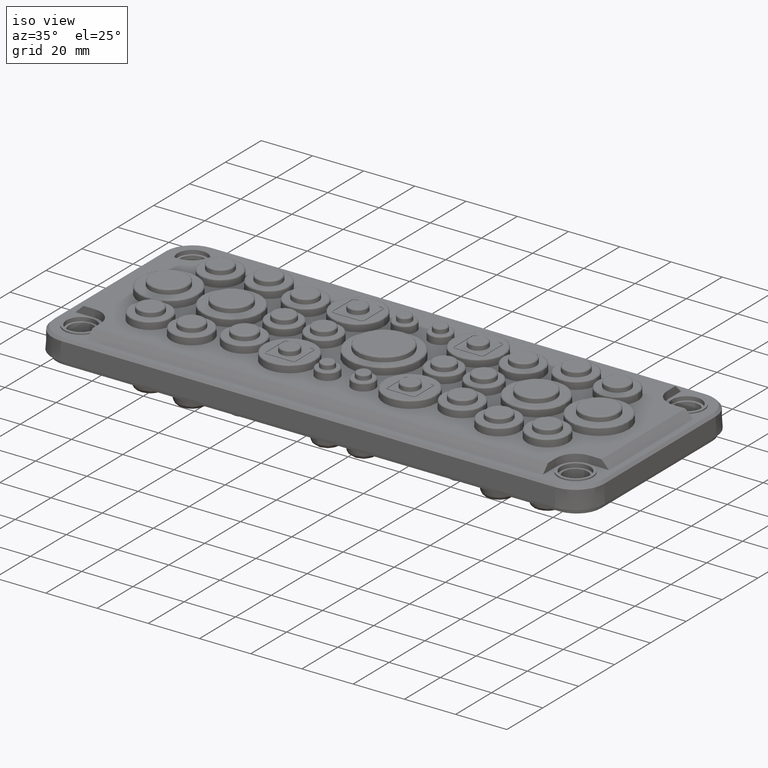
[diagram: clean part render]
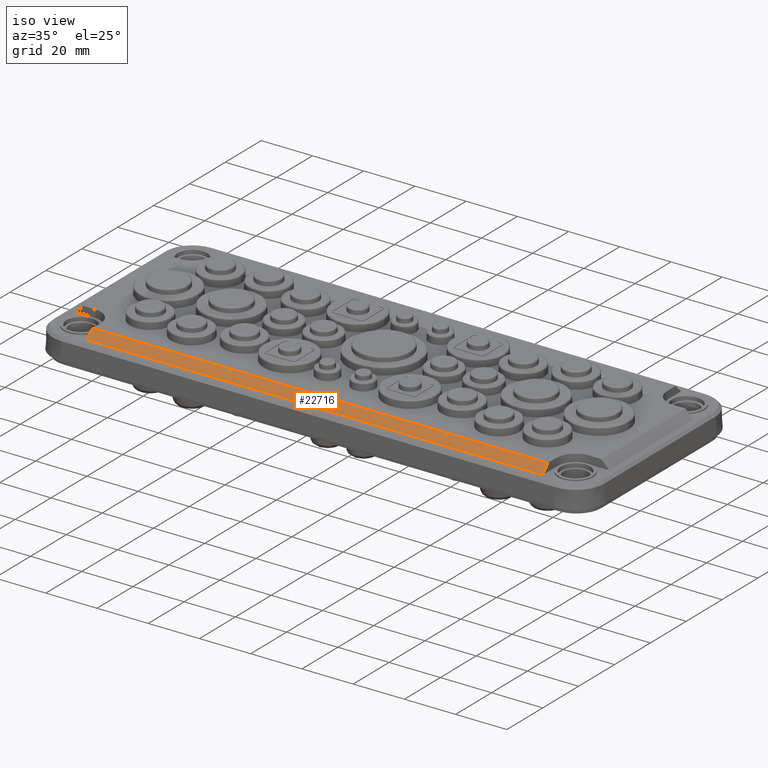
[diagram: same view with one face highlighted and labeled with its STEP entity id]
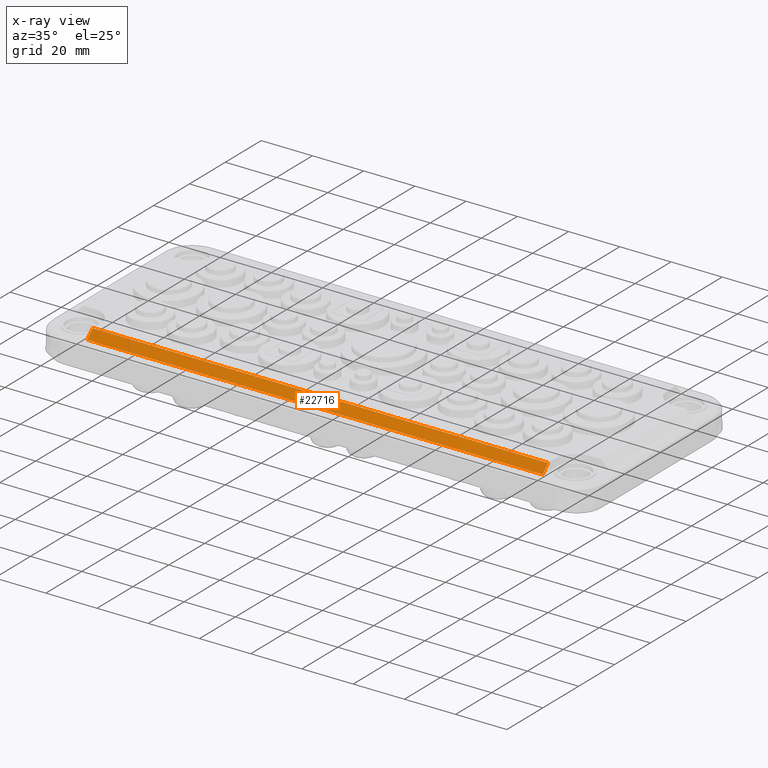
[diagram: x-ray of the same camera — body ghosted, the highlighted face saturated]
A machine part, iso view. The second image highlights one B-rep face of the part: STEP entity #22716.
The next image is the same camera in x-ray: the body ghosted, the highlighted face saturated — about 0% of this face is hidden behind the body in this view.
In plain terms, the highlighted planar face has unit normal (0, -0.7071, 0.7071).
Its self-contained STEP definition (entity closure, byte-faithful):
#198 = VECTOR ( 'NONE', #28284, 1000.000000000000000 ) ;
#320 = CARTESIAN_POINT ( 'NONE',  ( 88.89523769152477000, -35.49999999999999300, 10.99999999999999600 ) ) ;
#562 = CARTESIAN_POINT ( 'NONE',  ( 89.00000000000000000, -38.49999999999998600, 7.999999999999983100 ) ) ;
#1721 = ORIENTED_EDGE ( 'NONE', *, *, #21414, .F. ) ;
#2832 = EDGE_CURVE ( 'NONE', #4109, #40856, #30184, .T. ) ;
#3189 = CARTESIAN_POINT ( 'NONE',  ( 89.00000000000000000, -38.49999999999997900, 7.999999999999992900 ) ) ;
#4109 = VERTEX_POINT ( 'NONE', #36473 ) ;
#4963 = EDGE_LOOP ( 'NONE', ( #5694, #1721, #11586, #12678 ) ) ;
#5126 = VERTEX_POINT ( 'NONE', #3189 ) ;
#5694 = ORIENTED_EDGE ( 'NONE', *, *, #8320, .T. ) ;
#6312 = CARTESIAN_POINT ( 'NONE',  ( 89.00000000000000000, -38.49999999999997200, 7.999999999999992900 ) ) ;
#8320 = EDGE_CURVE ( 'NONE', #21209, #5126, #35703, .T. ) ;
#11586 = ORIENTED_EDGE ( 'NONE', *, *, #2832, .F. ) ;
#12111 = FACE_OUTER_BOUND ( 'NONE', #4963, .T. ) ;
#12678 = ORIENTED_EDGE ( 'NONE', *, *, #22892, .T. ) ;
#14218 = VECTOR ( 'NONE', #33566, 1000.000000000000100 ) ;
#17498 = AXIS2_PLACEMENT_3D ( 'NONE', #6312, #23316, #27233 ) ;
#19753 = DIRECTION ( 'NONE',  ( 1.000000000000000000, 0.0000000000000000000, -0.0000000000000000000 ) ) ;
#19837 = PLANE ( 'NONE',  #17498 ) ;
#21209 = VERTEX_POINT ( 'NONE', #24196 ) ;
#21414 = EDGE_CURVE ( 'NONE', #40856, #5126, #23909, .T. ) ;
#22716 = ADVANCED_FACE ( 'NONE', ( #12111 ), #19837, .T. ) ;
#22892 = EDGE_CURVE ( 'NONE', #4109, #21209, #35843, .T. ) ;
#22966 = CARTESIAN_POINT ( 'NONE',  ( 88.89523769152475600, -35.49999999999997200, 11.00000000000000000 ) ) ;
#23316 = DIRECTION ( 'NONE',  ( 8.659274570719351700E-017, -0.7071067811865472400, 0.7071067811865479100 ) ) ;
#23909 = LINE ( 'NONE', #22966, #14218 ) ;
#24196 = CARTESIAN_POINT ( 'NONE',  ( -89.00000000000005700, -38.49999999999999300, 7.999999999999994700 ) ) ;
#24642 = CARTESIAN_POINT ( 'NONE',  ( -88.89523769152482700, -35.49999999999999300, 10.99999999999999600 ) ) ;
#24695 = DIRECTION ( 'NONE',  ( 1.000000000000000000, 6.123031769111880100E-017, -6.123031769111886300E-017 ) ) ;
#27233 = DIRECTION ( 'NONE',  ( 0.0000000000000000000, -0.7071067811865479100, -0.7071067811865472400 ) ) ;
#28284 = DIRECTION ( 'NONE',  ( -0.02468518840782766400, -0.7068913075831645400, -0.7068913075831629900 ) ) ;
#30184 = LINE ( 'NONE', #37006, #35022 ) ;
#32472 = VECTOR ( 'NONE', #24695, 1000.000000000000000 ) ;
#33566 = DIRECTION ( 'NONE',  ( 0.02468518840783094600, -0.7068913075831649900, -0.7068913075831624300 ) ) ;
#35022 = VECTOR ( 'NONE', #19753, 1000.000000000000000 ) ;
#35703 = LINE ( 'NONE', #562, #32472 ) ;
#35843 = LINE ( 'NONE', #24642, #198 ) ;
#36473 = CARTESIAN_POINT ( 'NONE',  ( -88.89523769152477000, -35.49999999999999300, 10.99999999999999800 ) ) ;
#37006 = CARTESIAN_POINT ( 'NONE',  ( -89.00000000000000000, -35.50000000000000000, 11.00000000000000000 ) ) ;
#40856 = VERTEX_POINT ( 'NONE', #320 ) ;